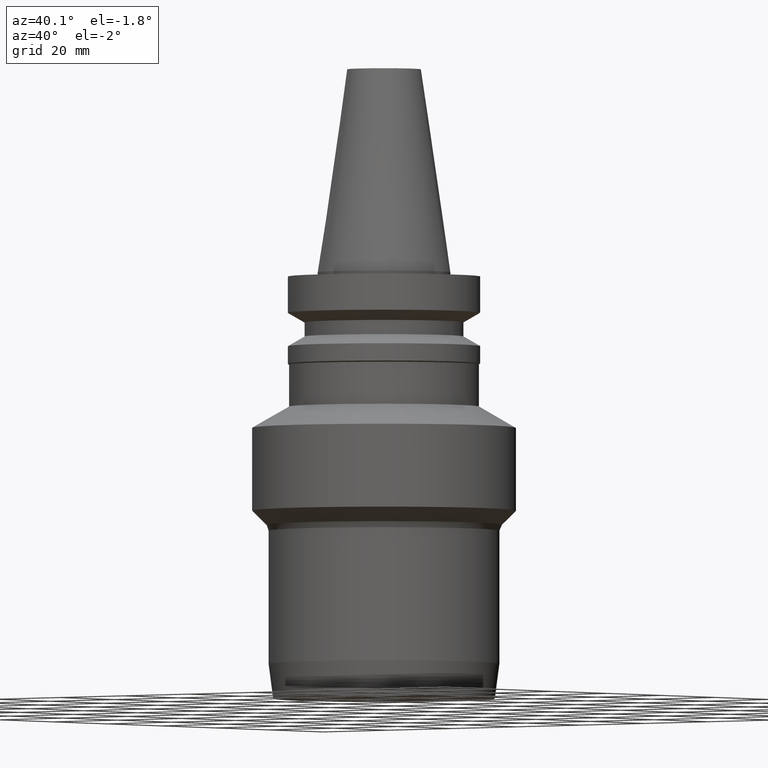
[diagram: clean part render]
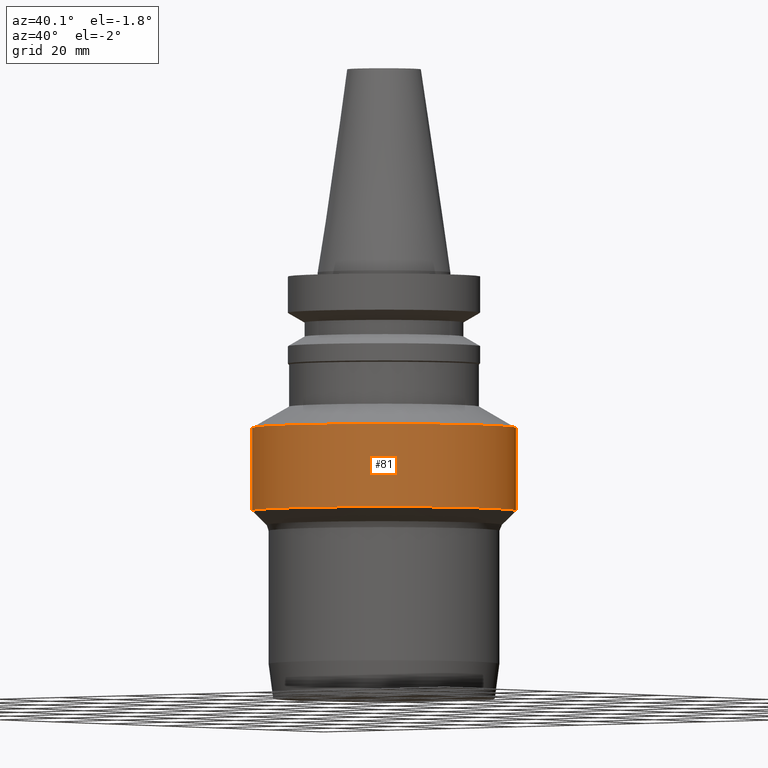
[diagram: same view with one face highlighted and labeled with its STEP entity id]
A machine part, auxiliary view. The second image highlights one B-rep face of the part: STEP entity #81.
In plain terms, the highlighted cylindrical surface (bore or boss wall) has radius 31.45 mm, axis along (0, 0, -1).
Its self-contained STEP definition (entity closure, byte-faithful):
#81=ADVANCED_FACE('Unnamed[1]',(#201,#202),#203,.T.);
#96=EDGE_CURVE('Unnamed[1]',#226,#226,#227,.T.);
#144=EDGE_CURVE('Unnamed[1]',#298,#298,#299,.T.);
#201=FACE_BOUND('',#357,.T.);
#202=FACE_BOUND('',#358,.T.);
#203=CYLINDRICAL_SURFACE('',#359,31.45);
#226=VERTEX_POINT('',#388);
#227=CIRCLE('',#389,31.45);
#298=VERTEX_POINT('',#479);
#299=CIRCLE('',#480,31.45);
#357=EDGE_LOOP('',(#532));
#358=EDGE_LOOP('',(#533));
#359=AXIS2_PLACEMENT_3D('',#534,#535,#536);
#388=CARTESIAN_POINT('',(3.47857255950651E-015,31.45,-56.8094010767582));
#389=AXIS2_PLACEMENT_3D('',#561,#562,#563);
#479=CARTESIAN_POINT('',(2.26876932326384E-015,31.45,-37.0518148554089));
#480=AXIS2_PLACEMENT_3D('',#638,#639,#640);
#532=ORIENTED_EDGE('',*,*,#96,.F.);
#533=ORIENTED_EDGE('',*,*,#144,.T.);
#534=CARTESIAN_POINT('',(2.87367094138517E-015,5.74734188277035E-015,-46.9306079660835));
#535=DIRECTION('',(6.12323399573677E-017,1.2246467991475E-016,-1.0));
#536=DIRECTION('',(-1.23259516440772E-032,1.0,1.2246467991475E-016));
#561=CARTESIAN_POINT('',(3.47857255950651E-015,6.95714511901301E-015,-56.8094010767582));
#562=DIRECTION('',(6.12323399573677E-017,1.2246467991475E-016,-1.0));
#563=DIRECTION('',(-1.23259516440772E-032,1.0,1.2246467991475E-016));
#638=CARTESIAN_POINT('',(2.26876932326384E-015,4.53753864652768E-015,-37.0518148554089));
#639=DIRECTION('',(6.12323399573677E-017,1.2246467991475E-016,-1.0));
#640=DIRECTION('',(-1.23259516440772E-032,1.0,1.2246467991475E-016));